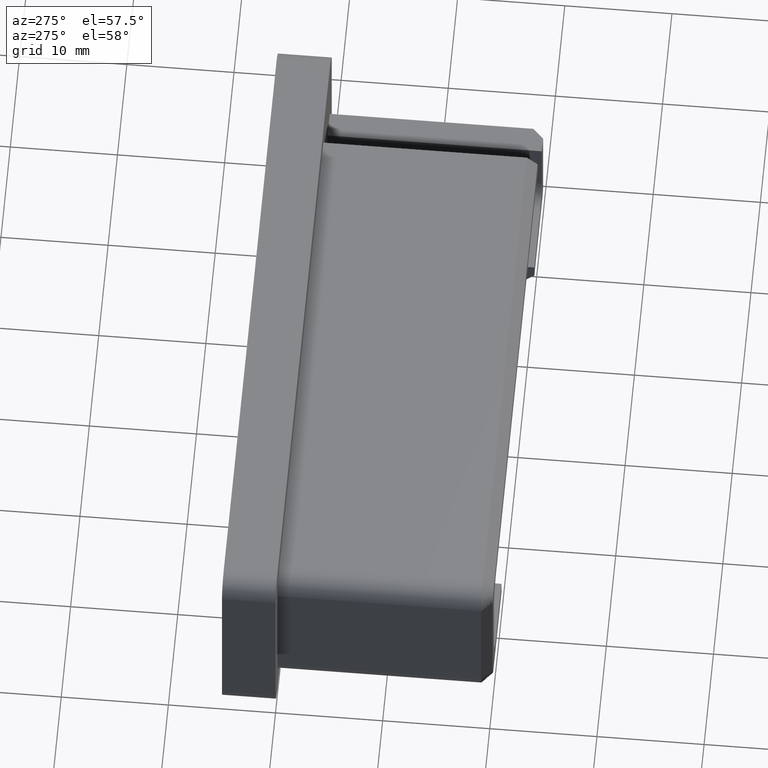
[diagram: clean part render]
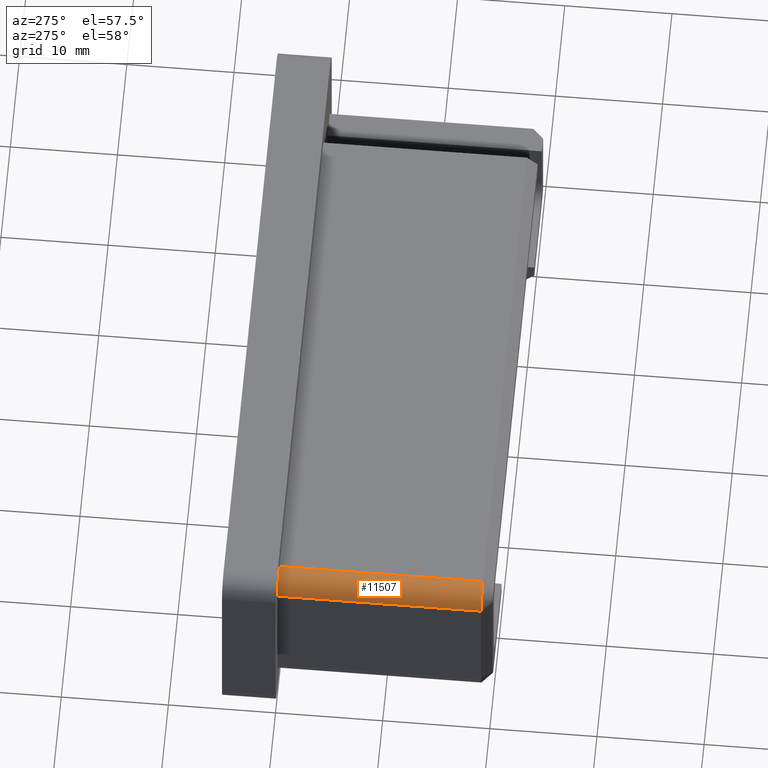
[diagram: same view with one face highlighted and labeled with its STEP entity id]
A machine part, auxiliary view. The second image highlights one B-rep face of the part: STEP entity #11507.
In plain terms, the highlighted cylindrical surface (edge-blend (fillet) strip) has radius 2 mm, axis along (0, 1, 0).
Its self-contained STEP definition (entity closure, byte-faithful):
#102 = LINE ( 'NONE', #13019, #2518 ) ;
#1197 = EDGE_LOOP ( 'NONE', ( #5842, #13658, #13416, #8154 ) ) ;
#1947 = CARTESIAN_POINT ( 'NONE',  ( -25.90000000000000568, -18.99999999999999289, 5.900000000000000355 ) ) ;
#2254 = VERTEX_POINT ( 'NONE', #13589 ) ;
#2259 = DIRECTION ( 'NONE',  ( 0.000000000000000000, 1.000000000000000000, 0.000000000000000000 ) ) ;
#2518 = VECTOR ( 'NONE', #2259, 1000.000000000000000 ) ;
#2945 = EDGE_CURVE ( 'NONE', #12694, #14426, #5133, .T. ) ;
#3088 = CIRCLE ( 'NONE', #14504, 2.000000000000000000 ) ;
#3179 = DIRECTION ( 'NONE',  ( 0.000000000000000000, 0.000000000000000000, 1.000000000000000000 ) ) ;
#4395 = AXIS2_PLACEMENT_3D ( 'NONE', #5113, #11164, #3179 ) ;
#5113 = CARTESIAN_POINT ( 'NONE',  ( -25.90000000000000568, -20.00000000000000000, 5.900000000000000355 ) ) ;
#5133 = LINE ( 'NONE', #5674, #7055 ) ;
#5586 = CARTESIAN_POINT ( 'NONE',  ( -25.90000000000000568, 0.000000000000000000, 5.900000000000000355 ) ) ;
#5674 = CARTESIAN_POINT ( 'NONE',  ( -25.90000000000000568, -20.00000000000000000, 7.900000000000000355 ) ) ;
#5726 = DIRECTION ( 'NONE',  ( -0.000000000000000000, -1.000000000000000000, -0.000000000000000000 ) ) ;
#5842 = ORIENTED_EDGE ( 'NONE', *, *, #10527, .F. ) ;
#6544 = VERTEX_POINT ( 'NONE', #9421 ) ;
#6808 = DIRECTION ( 'NONE',  ( 0.000000000000000000, 0.000000000000000000, 1.000000000000000000 ) ) ;
#6836 = CYLINDRICAL_SURFACE ( 'NONE', #4395, 2.000000000000000000 ) ;
#7055 = VECTOR ( 'NONE', #5726, 1000.000000000000000 ) ;
#7927 = CIRCLE ( 'NONE', #11286, 2.000000000000000000 ) ;
#8046 = DIRECTION ( 'NONE',  ( 0.000000000000000000, 1.000000000000000000, 0.000000000000000000 ) ) ;
#8154 = ORIENTED_EDGE ( 'NONE', *, *, #9654, .F. ) ;
#8864 = FACE_OUTER_BOUND ( 'NONE', #1197, .T. ) ;
#9421 = CARTESIAN_POINT ( 'NONE',  ( -27.90000000000000568, 0.000000000000000000, 5.900000000000007461 ) ) ;
#9654 = EDGE_CURVE ( 'NONE', #6544, #12694, #3088, .T. ) ;
#10275 = DIRECTION ( 'NONE',  ( 0.000000000000000000, 1.000000000000000000, 0.000000000000000000 ) ) ;
#10328 = DIRECTION ( 'NONE',  ( 1.734723475976807094E-15, 0.000000000000000000, -1.000000000000000000 ) ) ;
#10527 = EDGE_CURVE ( 'NONE', #2254, #6544, #102, .T. ) ;
#11164 = DIRECTION ( 'NONE',  ( 0.000000000000000000, 1.000000000000000000, 0.000000000000000000 ) ) ;
#11286 = AXIS2_PLACEMENT_3D ( 'NONE', #1947, #10275, #10328 ) ;
#11507 = ADVANCED_FACE ( 'NONE', ( #8864 ), #6836, .T. ) ;
#11991 = EDGE_CURVE ( 'NONE', #2254, #14426, #7927, .T. ) ;
#12519 = CARTESIAN_POINT ( 'NONE',  ( -25.90000000000000568, 0.000000000000000000, 7.900000000000000355 ) ) ;
#12694 = VERTEX_POINT ( 'NONE', #12519 ) ;
#13019 = CARTESIAN_POINT ( 'NONE',  ( -27.90000000000000568, -20.00000000000000000, 5.900000000000007461 ) ) ;
#13416 = ORIENTED_EDGE ( 'NONE', *, *, #2945, .F. ) ;
#13589 = CARTESIAN_POINT ( 'NONE',  ( -27.90000000000000568, -18.99999999999999289, 5.900000000000007461 ) ) ;
#13658 = ORIENTED_EDGE ( 'NONE', *, *, #11991, .T. ) ;
#14426 = VERTEX_POINT ( 'NONE', #15069 ) ;
#14504 = AXIS2_PLACEMENT_3D ( 'NONE', #5586, #8046, #6808 ) ;
#15069 = CARTESIAN_POINT ( 'NONE',  ( -25.90000000000000568, -18.99999999999999289, 7.900000000000000355 ) ) ;